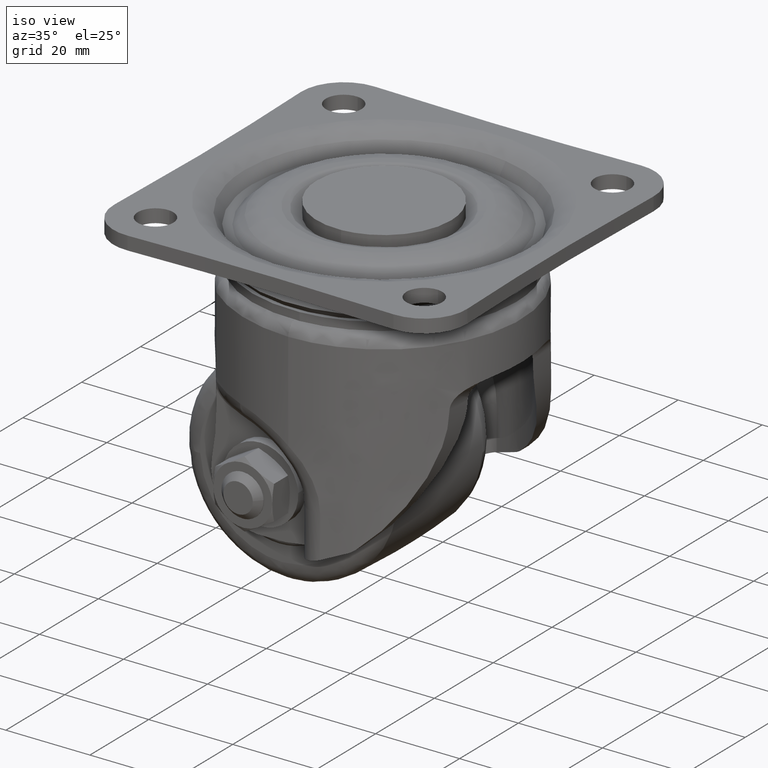
[diagram: clean part render]
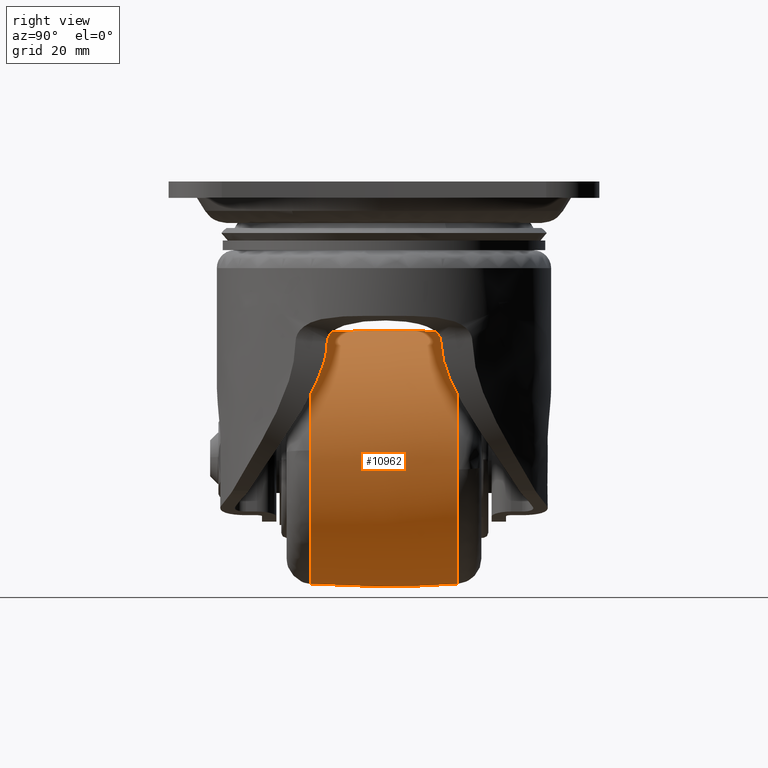
[diagram: tour spotlight — one face highlighted and labeled with its STEP entity id]
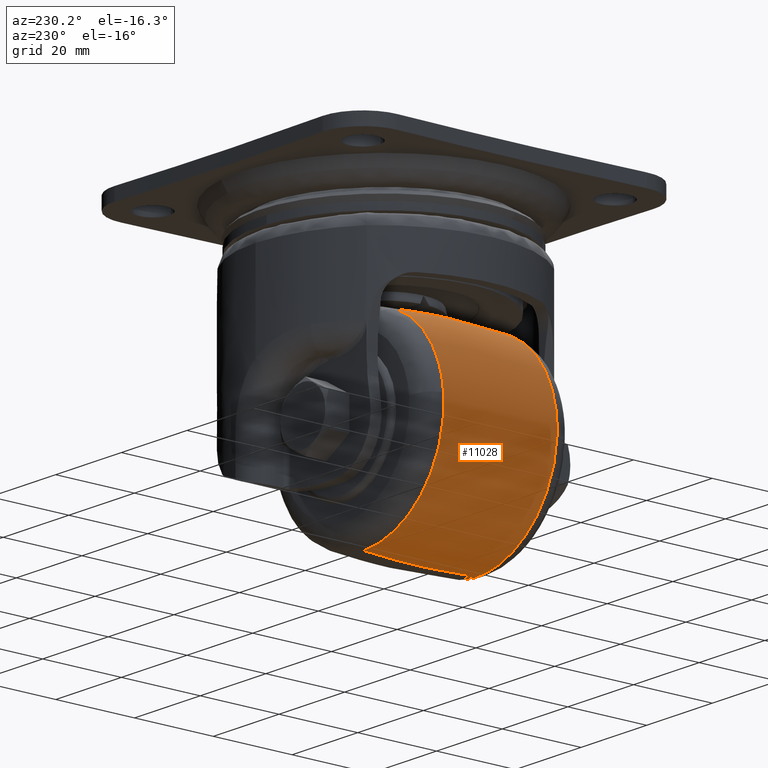
[diagram: tour spotlight — one face highlighted and labeled with its STEP entity id]
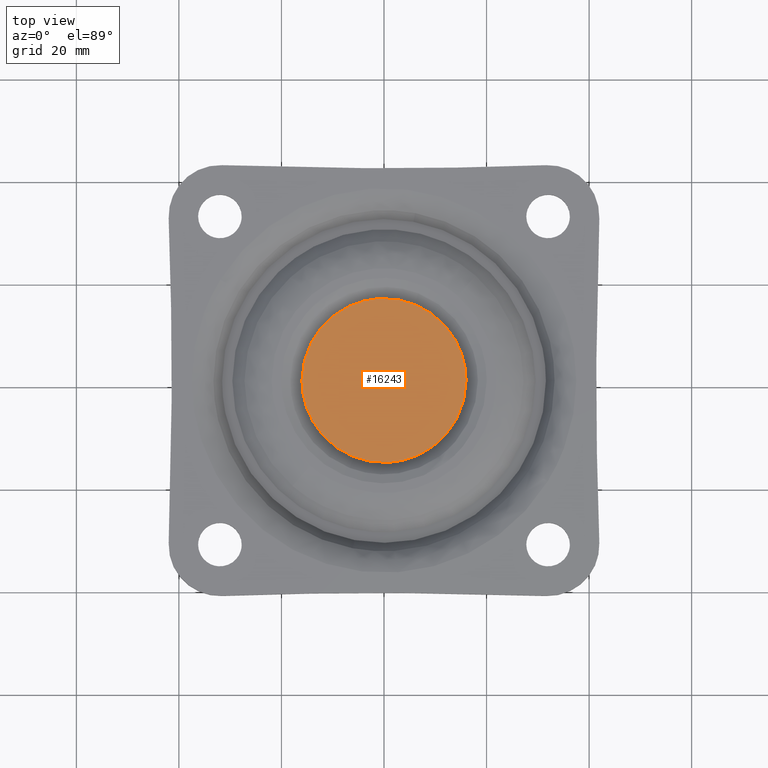
[diagram: tour spotlight — one face highlighted and labeled with its STEP entity id]
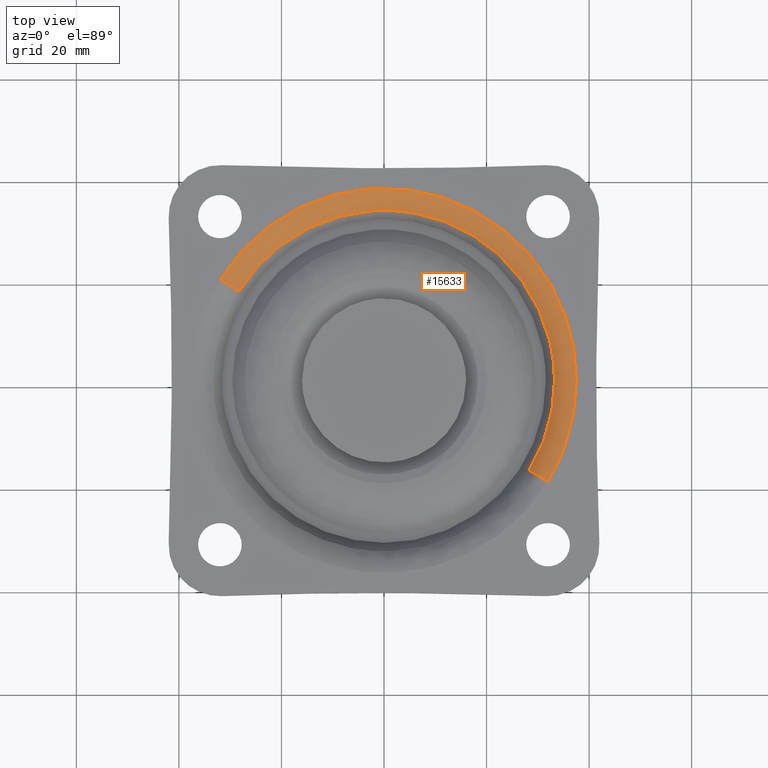
[diagram: tour spotlight — one face highlighted and labeled with its STEP entity id]
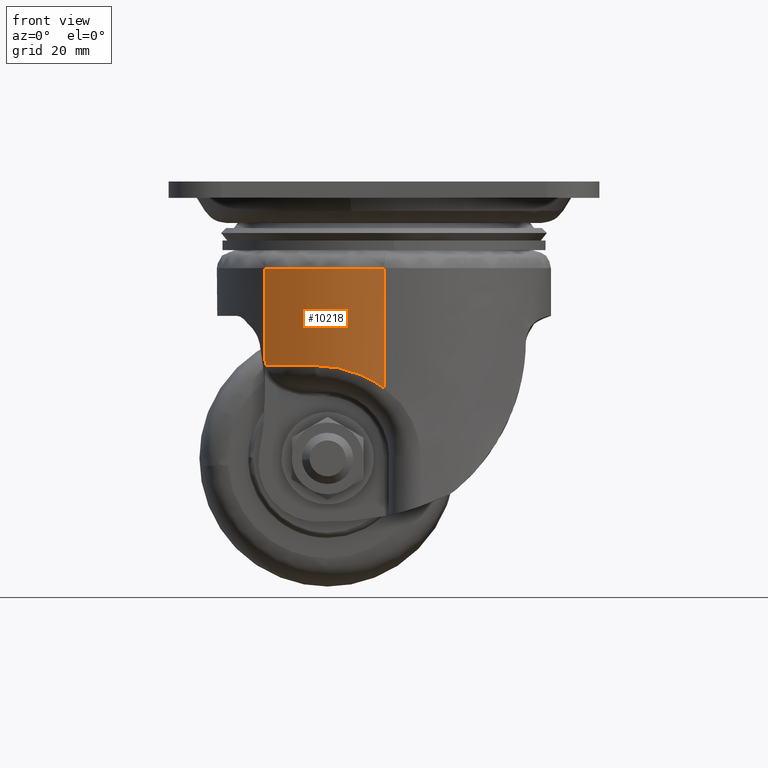
[diagram: tour spotlight — one face highlighted and labeled with its STEP entity id]
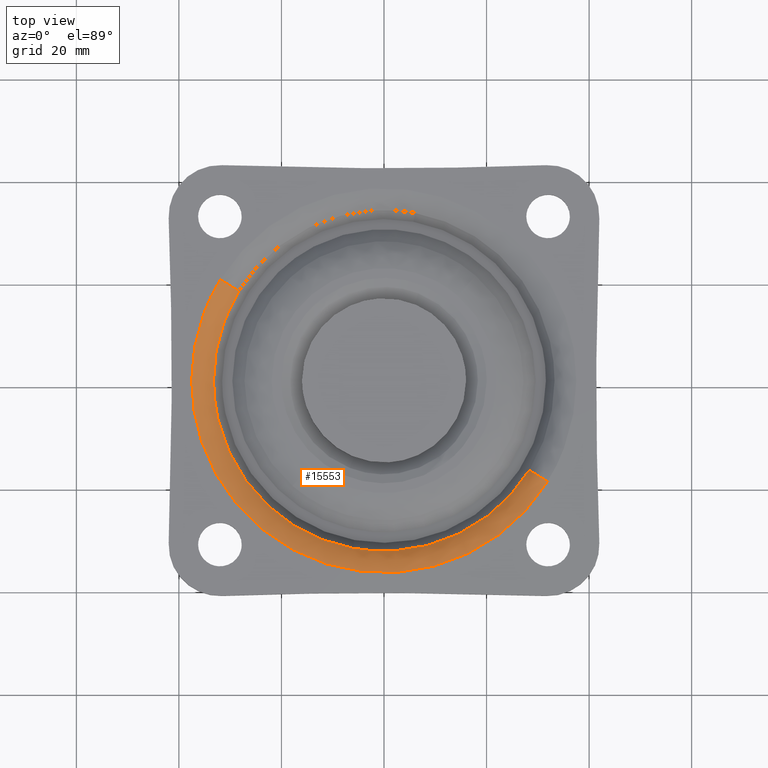
[diagram: tour spotlight — one face highlighted and labeled with its STEP entity id]
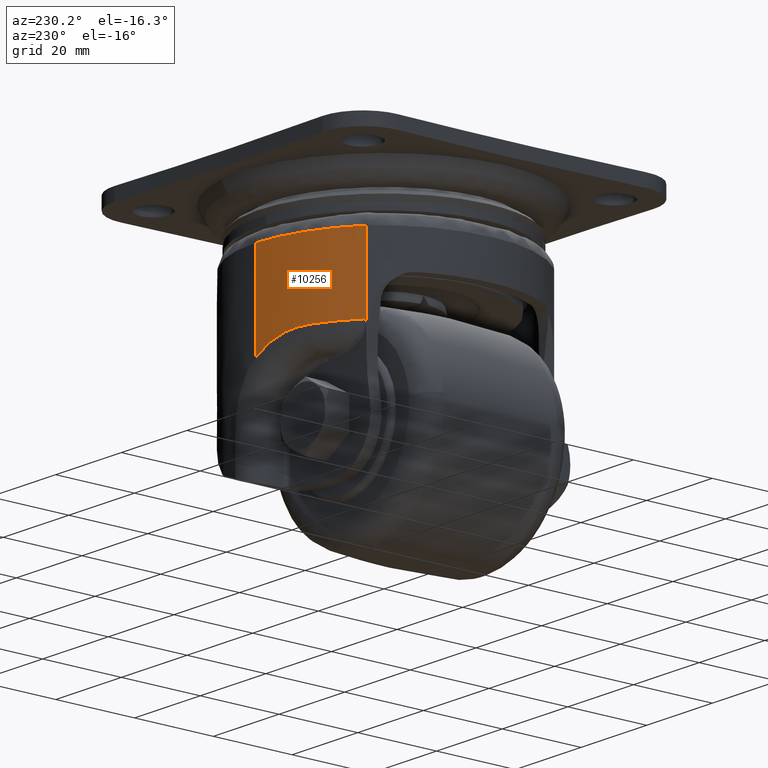
[diagram: tour spotlight — one face highlighted and labeled with its STEP entity id]
A machine part: a face-by-face anatomy tour. The part has 267 B-rep faces; the first image is the clean iso view, then the 7 largest visible faces are spotlighted one at a time (largest first), each with its STEP entity span.

Face 1 — right view, entity #10962. In plain terms, the highlighted face is a freeform B-spline surface patch.
Definition (entity closure, byte-faithful):
#10755=CARTESIAN_POINT('',(-10.999955000000099,14.358974467938410,-29.516086309539631));
#10756=VERTEX_POINT('',#10755);
#10770=CARTESIAN_POINT('',(13.389268591093650,14.358970086692951,-56.150873064970547));
#10771=VERTEX_POINT('',#10770);
#10772=CARTESIAN_POINT('',(13.389268591093657,14.358970086692953,-56.150873064970547));
#10773=CARTESIAN_POINT('',(13.483929671239546,14.358970174440188,-55.077504762395257));
#10774=CARTESIAN_POINT('',(13.483929649555380,14.358970270360620,-53.999970430027311));
#10775=CARTESIAN_POINT('',(13.483929156844626,14.358972449878047,-29.516086349328670));
#10776=CARTESIAN_POINT('',(-10.999955000000099,14.358974467938410,-29.516086309539631));
#10784=(BOUNDED_CURVE()B_SPLINE_CURVE(2,(#10772,#10773,#10774,#10775,#10776),.UNSPECIFIED.,.F.,.U.)B_SPLINE_CURVE_WITH_KNOTS((3,2,3),(0.234718706160021,0.250000000000000,0.500000000000000),.UNSPECIFIED.)CURVE()GEOMETRIC_REPRESENTATION_ITEM()RATIONAL_B_SPLINE_CURVE((0.966382367565052,0.982096850638297,1.0,0.707106781186547,1.0))REPRESENTATION_ITEM(''));
#10785=EDGE_CURVE('',#10771,#10756,#10784,.T.);
#10834=CARTESIAN_POINT('',(-10.999955000000099,14.358974516637961,-78.483854384031872));
#10835=VERTEX_POINT('',#10834);
#10836=CARTESIAN_POINT('',(-10.999955000000099,14.358974516637961,-78.483854384031872));
#10837=CARTESIAN_POINT('',(11.419706872672061,14.358972312770808,-78.483854427484374));
#10838=CARTESIAN_POINT('',(13.389268591093657,14.358970086692953,-56.150873064970547));
#10846=(BOUNDED_CURVE()B_SPLINE_CURVE(2,(#10836,#10837,#10838),.UNSPECIFIED.,.F.,.U.)B_SPLINE_CURVE_WITH_KNOTS((3,3),(0.0,0.234718706160021),.UNSPECIFIED.)CURVE()GEOMETRIC_REPRESENTATION_ITEM()RATIONAL_B_SPLINE_CURVE((1.0,0.725009930548250,0.966382367565052))REPRESENTATION_ITEM(''));
#10847=EDGE_CURVE('',#10835,#10771,#10846,.T.);
#10869=CARTESIAN_POINT('',(-11.681422334244921,-15.789163454195075,-78.375751672240042));
#10870=CARTESIAN_POINT('',(-11.716379180557585,-0.000003082789007,-79.626142425909677));
#10871=CARTESIAN_POINT('',(-11.681422347810289,15.789157327043656,-78.375752157467346));
#10872=CARTESIAN_POINT('',(-11.342673014693993,-15.789163454195073,-78.375751672240028));
#10873=CARTESIAN_POINT('',(-11.360253227810906,-0.000003082789007,-79.626142425909677));
#10874=CARTESIAN_POINT('',(-11.342673021516173,15.789157327043656,-78.375752157467332));
#10875=CARTESIAN_POINT('',(13.375826672239921,-15.789163454195066,-78.375751672240028));
#10876=CARTESIAN_POINT('',(14.626217425909584,-0.000003082789001,-79.626142425909705));
#10877=CARTESIAN_POINT('',(13.375827157467237,15.789157327043668,-78.375752157467346));
#10878=CARTESIAN_POINT('',(13.375826672239921,-15.789163454195073,-53.999970000000005));
#10879=CARTESIAN_POINT('',(14.626217425909569,-0.000003082789007,-53.999969999999998));
#10880=CARTESIAN_POINT('',(13.375827157467230,15.789157327043647,-53.999969999999983));
#10881=CARTESIAN_POINT('',(13.375826672239929,-15.789163454195066,-29.624188327759985));
#10882=CARTESIAN_POINT('',(14.626217425909589,-0.000003082789001,-28.373797574090325));
#10883=CARTESIAN_POINT('',(13.375827157467242,15.789157327043668,-29.624187842532660));
#10884=CARTESIAN_POINT('',(-11.342673014693993,-15.789163454195073,-29.624188327759988));
#10885=CARTESIAN_POINT('',(-11.360253227810906,-0.000003082789007,-28.373797574090329));
#10886=CARTESIAN_POINT('',(-11.342673021516184,15.789157327043654,-29.624187842532656));
#10887=CARTESIAN_POINT('',(-11.681422334244928,-15.789163454195073,-29.624188327759992));
#10888=CARTESIAN_POINT('',(-11.716379180557592,-0.000003082789007,-28.373797574090325));
#10889=CARTESIAN_POINT('',(-11.681422347810297,15.789157327043654,-29.624187842532656));
#10897=(BOUNDED_SURFACE()B_SPLINE_SURFACE(2,2,((#10869,#10872,#10875,#10878,#10881,#10884,#10887),(#10870,#10873,#10876,#10879,#10882,#10885,#10888),(#10871,#10874,#10877,#10880,#10883,#10886,#10889)),.UNSPECIFIED.,.F.,.F.,.U.)B_SPLINE_SURFACE_WITH_KNOTS((3,3),(3,1,2,1,3),(0.0,31.627677201489579),(0.0,0.828427124746193,42.249783362055688,83.671139599365191,84.499566724111389),.UNSPECIFIED.)GEOMETRIC_REPRESENTATION_ITEM()RATIONAL_B_SPLINE_SURFACE(((0.949965961114694,0.944465629742814,0.663948729776938,0.938965298370934,0.663948729776938,0.944465629742814,0.949965961114694),(0.947001030873402,0.941517866536436,0.661876485351176,0.936034702199470,0.661876485351176,0.941517866536436,0.947001030873402),(0.949965959960520,0.944465628595323,0.663948728970264,0.938965297230125,0.663948728970264,0.944465628595323,0.949965959960520)))REPRESENTATION_ITEM('')SURFACE());
#10898=CARTESIAN_POINT('',(-10.999955000000099,-14.358975065796139,-78.483854344503129));
#10899=VERTEX_POINT('',#10898);
#10900=CARTESIAN_POINT('',(-10.999955000000099,-14.358975065796136,-78.483854344503129));
#10901=CARTESIAN_POINT('',(-10.999955000000103,-0.000000276001740,-79.517422348945146));
#10902=CARTESIAN_POINT('',(-10.999955000000101,14.358974516637963,-78.483854384031872));
#10910=(BOUNDED_CURVE()B_SPLINE_CURVE(2,(#10900,#10901,#10902),.UNSPECIFIED.,.F.,.U.)B_SPLINE_CURVE_WITH_KNOTS((3,3),(0.430395100552181,0.569604896778896),.UNSPECIFIED.)CURVE()GEOMETRIC_REPRESENTATION_ITEM()RATIONAL_B_SPLINE_CURVE((0.938711210506785,0.936288789539657,0.938711210413900))REPRESENTATION_ITEM(''));
#10911=EDGE_CURVE('',#10899,#10835,#10910,.T.);
#10912=ORIENTED_EDGE('',*,*,#10911,.T.);
#10913=ORIENTED_EDGE('',*,*,#10847,.T.);
#10914=ORIENTED_EDGE('',*,*,#10785,.T.);
#10915=CARTESIAN_POINT('',(-10.999955000000099,-14.358974711101091,-29.516085281427198));
#10916=VERTEX_POINT('',#10915);
#10917=CARTESIAN_POINT('',(-10.999955000000103,-14.358974711101089,-29.516085281427198));
#10918=CARTESIAN_POINT('',(-10.999955000000096,-0.000000122017305,-28.482517838116387));
#10919=CARTESIAN_POINT('',(-10.999955000000107,14.358974467938406,-29.516086309539631));
#10927=(BOUNDED_CURVE()B_SPLINE_CURVE(2,(#10917,#10918,#10919),.UNSPECIFIED.,.F.,.U.)B_SPLINE_CURVE_WITH_KNOTS((3,3),(0.430395102397308,0.569604896784815),.UNSPECIFIED.)CURVE()GEOMETRIC_REPRESENTATION_ITEM()RATIONAL_B_SPLINE_CURVE((0.938711210442570,0.936288789571662,0.938711210414106))REPRESENTATION_ITEM(''));
#10928=EDGE_CURVE('',#10916,#10756,#10927,.T.);
#10929=ORIENTED_EDGE('',*,*,#10928,.F.);
#10930=CARTESIAN_POINT('',(13.435616724365071,-14.358974875915081,-52.462614135737290));
#10931=VERTEX_POINT('',#10930);
#10932=CARTESIAN_POINT('',(13.435616724365074,-14.358974875915079,-52.462614135737290));
#10933=CARTESIAN_POINT('',(11.991943618045648,-14.358974710402196,-29.516085282162251));
#10934=CARTESIAN_POINT('',(-10.999955000000099,-14.358974711101091,-29.516085281427198));
#10942=(BOUNDED_CURVE()B_SPLINE_CURVE(2,(#10932,#10933,#10934),.UNSPECIFIED.,.F.,.U.)B_SPLINE_CURVE_WITH_KNOTS((3,3),(0.260968088193144,0.500000000000000),.UNSPECIFIED.)CURVE()GEOMETRIC_REPRESENTATION_ITEM()RATIONAL_B_SPLINE_CURVE((0.975427682733696,0.719956695807026,1.0))REPRESENTATION_ITEM(''));
#10943=EDGE_CURVE('',#10931,#10916,#10942,.T.);
#10944=ORIENTED_EDGE('',*,*,#10943,.F.);
#10945=CARTESIAN_POINT('',(-10.999955000000099,-14.358975065796139,-78.483854344503129));
#10946=CARTESIAN_POINT('',(13.483930081670499,-14.358975065139830,-78.483854345193365));
#10947=CARTESIAN_POINT('',(13.483930069987309,-14.358974887093410,-53.999969814390447));
#10948=CARTESIAN_POINT('',(13.483930069620149,-14.358974881498074,-53.230532821141466));
#10949=CARTESIAN_POINT('',(13.435616724365074,-14.358974875915079,-52.462614135737290));
#10957=(BOUNDED_CURVE()B_SPLINE_CURVE(2,(#10945,#10946,#10947,#10948,#10949),.UNSPECIFIED.,.F.,.U.)B_SPLINE_CURVE_WITH_KNOTS((3,2,3),(0.0,0.250000000000000,0.260968088193144),.UNSPECIFIED.)CURVE()GEOMETRIC_REPRESENTATION_ITEM()RATIONAL_B_SPLINE_CURVE((1.0,0.707106781186547,1.0,0.987150085379521,0.975427682733696))REPRESENTATION_ITEM(''));
#10958=EDGE_CURVE('',#10899,#10931,#10957,.T.);
#10959=ORIENTED_EDGE('',*,*,#10958,.F.);
#10960=EDGE_LOOP('',(#10912,#10913,#10914,#10929,#10944,#10959));
#10961=FACE_OUTER_BOUND('',#10960,.T.);
#10962=ADVANCED_FACE('',(#10961),#10897,.T.);

Face 2 — auxiliary view, entity #11028. In plain terms, the highlighted face is a freeform B-spline surface patch.
Definition (entity closure, byte-faithful):
#10740=CARTESIAN_POINT('',(-35.389178560744412,14.358970084346440,-51.849066937505292));
#10741=VERTEX_POINT('',#10740);
#10755=CARTESIAN_POINT('',(-10.999955000000099,14.358974467938410,-29.516086309539631));
#10756=VERTEX_POINT('',#10755);
#10757=CARTESIAN_POINT('',(-10.999955000000099,14.358974467938410,-29.516086309539631));
#10758=CARTESIAN_POINT('',(-33.419616252572943,14.358972265037126,-29.516086264748257));
#10759=CARTESIAN_POINT('',(-35.389178560744412,14.358970084346444,-51.849066937505285));
#10767=(BOUNDED_CURVE()B_SPLINE_CURVE(2,(#10757,#10758,#10759),.UNSPECIFIED.,.F.,.U.)B_SPLINE_CURVE_WITH_KNOTS((3,3),(0.500000000000000,0.734718701338010),.UNSPECIFIED.)CURVE()GEOMETRIC_REPRESENTATION_ITEM()RATIONAL_B_SPLINE_CURVE((1.0,0.725009936197588,0.966382357647644))REPRESENTATION_ITEM(''));
#10768=EDGE_CURVE('',#10756,#10741,#10767,.T.);
#10834=CARTESIAN_POINT('',(-10.999955000000099,14.358974516637961,-78.483854384031872));
#10835=VERTEX_POINT('',#10834);
#10849=CARTESIAN_POINT('',(-35.389178560744412,14.358970084346444,-51.849066937505285));
#10850=CARTESIAN_POINT('',(-35.483839700990572,14.358970174189755,-52.922435582338252));
#10851=CARTESIAN_POINT('',(-35.483839678638269,14.358970272210980,-53.999970260979353));
#10852=CARTESIAN_POINT('',(-35.483839170746208,14.358972499462100,-78.483854343016844));
#10853=CARTESIAN_POINT('',(-10.999955000000099,14.358974516637961,-78.483854384031872));
#10861=(BOUNDED_CURVE()B_SPLINE_CURVE(2,(#10849,#10850,#10851,#10852,#10853),.UNSPECIFIED.,.F.,.U.)B_SPLINE_CURVE_WITH_KNOTS((3,2,3),(0.734718701338010,0.750000000000000,1.0),.UNSPECIFIED.)CURVE()GEOMETRIC_REPRESENTATION_ITEM()RATIONAL_B_SPLINE_CURVE((0.966382357647644,0.982096844988960,1.0,0.707106781186547,1.0))REPRESENTATION_ITEM(''));
#10862=EDGE_CURVE('',#10741,#10835,#10861,.T.);
#10898=CARTESIAN_POINT('',(-10.999955000000099,-14.358975065796139,-78.483854344503129));
#10899=VERTEX_POINT('',#10898);
#10900=CARTESIAN_POINT('',(-10.999955000000099,-14.358975065796136,-78.483854344503129));
#10901=CARTESIAN_POINT('',(-10.999955000000103,-0.000000276001740,-79.517422348945146));
#10902=CARTESIAN_POINT('',(-10.999955000000101,14.358974516637963,-78.483854384031872));
#10910=(BOUNDED_CURVE()B_SPLINE_CURVE(2,(#10900,#10901,#10902),.UNSPECIFIED.,.F.,.U.)B_SPLINE_CURVE_WITH_KNOTS((3,3),(0.430395100552181,0.569604896778896),.UNSPECIFIED.)CURVE()GEOMETRIC_REPRESENTATION_ITEM()RATIONAL_B_SPLINE_CURVE((0.938711210506785,0.936288789539657,0.938711210413900))REPRESENTATION_ITEM(''));
#10911=EDGE_CURVE('',#10899,#10835,#10910,.T.);
#10915=CARTESIAN_POINT('',(-10.999955000000099,-14.358974711101091,-29.516085281427198));
#10916=VERTEX_POINT('',#10915);
#10917=CARTESIAN_POINT('',(-10.999955000000103,-14.358974711101089,-29.516085281427198));
#10918=CARTESIAN_POINT('',(-10.999955000000096,-0.000000122017305,-28.482517838116387));
#10919=CARTESIAN_POINT('',(-10.999955000000107,14.358974467938406,-29.516086309539631));
#10927=(BOUNDED_CURVE()B_SPLINE_CURVE(2,(#10917,#10918,#10919),.UNSPECIFIED.,.F.,.U.)B_SPLINE_CURVE_WITH_KNOTS((3,3),(0.430395102397308,0.569604896784815),.UNSPECIFIED.)CURVE()GEOMETRIC_REPRESENTATION_ITEM()RATIONAL_B_SPLINE_CURVE((0.938711210442570,0.936288789571662,0.938711210414106))REPRESENTATION_ITEM(''));
#10928=EDGE_CURVE('',#10916,#10756,#10927,.T.);
#10963=CARTESIAN_POINT('',(-10.318487665755276,-15.789163454195075,-29.624188327759995));
#10964=CARTESIAN_POINT('',(-10.283530819442605,-0.000003082789007,-28.373797574090325));
#10965=CARTESIAN_POINT('',(-10.318487652189901,15.789157327043654,-29.624187842532656));
#10966=CARTESIAN_POINT('',(-10.657236985306207,-15.789163454195073,-29.624188327759988));
#10967=CARTESIAN_POINT('',(-10.639656772189293,-0.000003082789007,-28.373797574090315));
#10968=CARTESIAN_POINT('',(-10.657236978484013,15.789157327043656,-29.624187842532660));
#10969=CARTESIAN_POINT('',(-35.375736672240116,-15.789163454195066,-29.624188327759974));
#10970=CARTESIAN_POINT('',(-36.626127425909779,-0.000003082789001,-28.373797574090325));
#10971=CARTESIAN_POINT('',(-35.375737157467441,15.789157327043668,-29.624187842532660));
#10972=CARTESIAN_POINT('',(-35.375736672240116,-15.789163454195073,-53.999970000000005));
#10973=CARTESIAN_POINT('',(-36.626127425909765,-0.000003082789007,-53.999969999999998));
#10974=CARTESIAN_POINT('',(-35.375737157467434,15.789157327043647,-53.999969999999983));
#10975=CARTESIAN_POINT('',(-35.375736672240116,-15.789163454195066,-78.375751672240000));
#10976=CARTESIAN_POINT('',(-36.626127425909779,-0.000003082789001,-79.626142425909677));
#10977=CARTESIAN_POINT('',(-35.375737157467441,15.789157327043668,-78.375752157467318));
#10978=CARTESIAN_POINT('',(-10.657236985306207,-15.789163454195073,-78.375751672240028));
#10979=CARTESIAN_POINT('',(-10.639656772189293,-0.000003082789007,-79.626142425909677));
#10980=CARTESIAN_POINT('',(-10.657236978484011,15.789157327043654,-78.375752157467332));
#10981=CARTESIAN_POINT('',(-10.318487665755274,-15.789163454195073,-78.375751672240028));
#10982=CARTESIAN_POINT('',(-10.283530819442603,-0.000003082789007,-79.626142425909691));
#10983=CARTESIAN_POINT('',(-10.318487652189898,15.789157327043654,-78.375752157467332));
#10991=(BOUNDED_SURFACE()B_SPLINE_SURFACE(2,2,((#10963,#10966,#10969,#10972,#10975,#10978,#10981),(#10964,#10967,#10970,#10973,#10976,#10979,#10982),(#10965,#10968,#10971,#10974,#10977,#10980,#10983)),.UNSPECIFIED.,.F.,.F.,.U.)B_SPLINE_SURFACE_WITH_KNOTS((3,3),(3,1,2,1,3),(0.0,31.627677201489579),(0.0,0.828427124746195,42.249783362055688,83.671139599365191,84.499566724111389),.UNSPECIFIED.)GEOMETRIC_REPRESENTATION_ITEM()RATIONAL_B_SPLINE_SURFACE(((0.949965961114694,0.944465629742814,0.663948729776938,0.938965298370934,0.663948729776938,0.944465629742814,0.949965961114694),(0.947001030873402,0.941517866536436,0.661876485351176,0.936034702199470,0.661876485351176,0.941517866536436,0.947001030873402),(0.949965959960520,0.944465628595323,0.663948728970264,0.938965297230125,0.663948728970264,0.944465628595323,0.949965959960520)))REPRESENTATION_ITEM('')SURFACE());
#10992=ORIENTED_EDGE('',*,*,#10911,.F.);
#10993=CARTESIAN_POINT('',(-35.435526711788157,-14.358974898970150,-55.537325863471423));
#10994=VERTEX_POINT('',#10993);
#10995=CARTESIAN_POINT('',(-35.435526711788164,-14.358974898970152,-55.537325863471423));
#10996=CARTESIAN_POINT('',(-33.991853272203315,-14.358975065489034,-78.483854344109844));
#10997=CARTESIAN_POINT('',(-10.999955000000099,-14.358975065796139,-78.483854344503129));
#11005=(BOUNDED_CURVE()B_SPLINE_CURVE(2,(#10995,#10996,#10997),.UNSPECIFIED.,.F.,.U.)B_SPLINE_CURVE_WITH_KNOTS((3,3),(0.760968090822409,1.0),.UNSPECIFIED.)CURVE()GEOMETRIC_REPRESENTATION_ITEM()RATIONAL_B_SPLINE_CURVE((0.975427677113518,0.719956698887403,1.0))REPRESENTATION_ITEM(''));
#11006=EDGE_CURVE('',#10994,#10899,#11005,.T.);
#11007=ORIENTED_EDGE('',*,*,#11006,.F.);
#11008=CARTESIAN_POINT('',(-10.999955000000099,-14.358974711101091,-29.516085281427198));
#11009=CARTESIAN_POINT('',(-35.483840086771956,-14.358974710812694,-29.516085281057894));
#11010=CARTESIAN_POINT('',(-35.483840080521063,-14.358974887853121,-53.999969812202593));
#11011=CARTESIAN_POINT('',(-35.483840080324619,-14.358974893416841,-54.769406992312447));
#11012=CARTESIAN_POINT('',(-35.435526711788164,-14.358974898970152,-55.537325863471423));
#11020=(BOUNDED_CURVE()B_SPLINE_CURVE(2,(#11008,#11009,#11010,#11011,#11012),.UNSPECIFIED.,.F.,.U.)B_SPLINE_CURVE_WITH_KNOTS((3,2,3),(0.500000000000000,0.750000000000000,0.760968090822409),.UNSPECIFIED.)CURVE()GEOMETRIC_REPRESENTATION_ITEM()RATIONAL_B_SPLINE_CURVE((1.0,0.707106781186547,1.0,0.987150082299145,0.975427677113518))REPRESENTATION_ITEM(''));
#11021=EDGE_CURVE('',#10916,#10994,#11020,.T.);
#11022=ORIENTED_EDGE('',*,*,#11021,.F.);
#11023=ORIENTED_EDGE('',*,*,#10928,.T.);
#11024=ORIENTED_EDGE('',*,*,#10768,.T.);
#11025=ORIENTED_EDGE('',*,*,#10862,.T.);
#11026=EDGE_LOOP('',(#10992,#11007,#11022,#11023,#11024,#11025));
#11027=FACE_OUTER_BOUND('',#11026,.T.);
#11028=ADVANCED_FACE('',(#11027),#10991,.T.);

Face 3 — top view, entity #16243. In plain terms, the highlighted face is a freeform B-spline surface patch.
Definition (entity closure, byte-faithful):
#16172=CARTESIAN_POINT('',(-17.598399937977788,-17.598006196946979,-4.898425E-016));
#16173=CARTESIAN_POINT('',(17.598400796284679,-17.598006196946979,-4.898425E-016));
#16174=CARTESIAN_POINT('',(-17.598399937977788,17.598005624742399,-4.898425E-016));
#16175=CARTESIAN_POINT('',(17.598400796284679,17.598005624742399,-4.898425E-016));
#16176=B_SPLINE_SURFACE_WITH_KNOTS('',1,1,((#16172,#16174),(#16173,#16175)),.UNSPECIFIED.,.F.,.F.,.U.,(2,2),(2,2),(0.0,35.196800734262467),(0.0,35.196011821689382),.UNSPECIFIED.);
#16177=CARTESIAN_POINT('',(0.976755932767944,-15.970158040776310,-9.339318E-016));
#16178=VERTEX_POINT('',#16177);
#16179=CARTESIAN_POINT('',(-16.0,5.143345E-015,-9.796851E-016));
#16180=VERTEX_POINT('',#16179);
#16181=CARTESIAN_POINT('',(0.976755932767944,-15.970158040776312,-9.339318E-016));
#16182=CARTESIAN_POINT('',(0.488833833862659,-15.999999999986771,-9.345892E-016));
#16183=CARTESIAN_POINT('',(-7.980705E-013,-15.999999999986970,-9.352882E-016));
#16184=CARTESIAN_POINT('',(-16.000000000000394,-15.999999999993692,-9.581648E-016));
#16185=CARTESIAN_POINT('',(-16.0,5.143345E-015,-9.796851E-016));
#16193=(BOUNDED_CURVE()B_SPLINE_CURVE(2,(#16181,#16182,#16183,#16184,#16185),.UNSPECIFIED.,.F.,.U.)B_SPLINE_CURVE_WITH_KNOTS((3,2,3),(0.739333185889295,0.750000000000000,1.0),.UNSPECIFIED.)CURVE()GEOMETRIC_REPRESENTATION_ITEM()RATIONAL_B_SPLINE_CURVE((0.976072520992464,0.987503049922523,1.0,0.707106781186548,1.0))REPRESENTATION_ITEM(''));
#16194=EDGE_CURVE('',#16178,#16180,#16193,.T.);
#16195=ORIENTED_EDGE('',*,*,#16194,.F.);
#16196=CARTESIAN_POINT('',(16.0,5.143345E-015,0.0));
#16197=VERTEX_POINT('',#16196);
#16198=CARTESIAN_POINT('',(16.0,5.143345E-015,0.0));
#16199=CARTESIAN_POINT('',(15.999999999999588,-15.051316615756301,-4.669659E-016));
#16200=CARTESIAN_POINT('',(0.976755932767944,-15.970158040776312,-9.339318E-016));
#16208=(BOUNDED_CURVE()B_SPLINE_CURVE(2,(#16198,#16199,#16200),.UNSPECIFIED.,.F.,.U.)B_SPLINE_CURVE_WITH_KNOTS((3,3),(0.500000000000000,0.739333185889295),.UNSPECIFIED.)CURVE()GEOMETRIC_REPRESENTATION_ITEM()RATIONAL_B_SPLINE_CURVE((1.0,0.719603731264024,0.976072520992464))REPRESENTATION_ITEM(''));
#16209=EDGE_CURVE('',#16197,#16178,#16208,.T.);
#16210=ORIENTED_EDGE('',*,*,#16209,.F.);
#16211=CARTESIAN_POINT('',(-0.976755932767944,15.970158040776321,-9.339318E-016));
#16212=VERTEX_POINT('',#16211);
#16213=CARTESIAN_POINT('',(-0.976755932767944,15.970158040776319,-9.339318E-016));
#16214=CARTESIAN_POINT('',(-0.488833833862660,15.999999999986779,-9.205109E-016));
#16215=CARTESIAN_POINT('',(7.954849E-013,15.999999999986990,-9.062441E-016));
#16216=CARTESIAN_POINT('',(16.000000000000380,15.999999999993692,-4.392782E-016));
#16217=CARTESIAN_POINT('',(16.0,5.143345E-015,0.0));
#16225=(BOUNDED_CURVE()B_SPLINE_CURVE(2,(#16213,#16214,#16215,#16216,#16217),.UNSPECIFIED.,.F.,.U.)B_SPLINE_CURVE_WITH_KNOTS((3,2,3),(0.239333185889295,0.250000000000000,0.500000000000000),.UNSPECIFIED.)CURVE()GEOMETRIC_REPRESENTATION_ITEM()RATIONAL_B_SPLINE_CURVE((0.976072520992465,0.987503049922523,1.0,0.707106781186548,1.0))REPRESENTATION_ITEM(''));
#16226=EDGE_CURVE('',#16212,#16197,#16225,.T.);
#16227=ORIENTED_EDGE('',*,*,#16226,.F.);
#16228=CARTESIAN_POINT('',(-16.0,5.143345E-015,-9.796851E-016));
#16229=CARTESIAN_POINT('',(-15.999999999999590,15.051316615756303,-9.568084E-016));
#16230=CARTESIAN_POINT('',(-0.976755932767944,15.970158040776319,-9.339318E-016));
#16238=(BOUNDED_CURVE()B_SPLINE_CURVE(2,(#16228,#16229,#16230),.UNSPECIFIED.,.F.,.U.)B_SPLINE_CURVE_WITH_KNOTS((3,3),(0.0,0.239333185889295),.UNSPECIFIED.)CURVE()GEOMETRIC_REPRESENTATION_ITEM()RATIONAL_B_SPLINE_CURVE((1.0,0.719603731264024,0.976072520992465))REPRESENTATION_ITEM(''));
#16239=EDGE_CURVE('',#16180,#16212,#16238,.T.);
#16240=ORIENTED_EDGE('',*,*,#16239,.F.);
#16241=EDGE_LOOP('',(#16195,#16210,#16227,#16240));
#16242=FACE_OUTER_BOUND('',#16241,.T.);
#16243=ADVANCED_FACE('',(#16242),#16176,.T.);

Face 4 — top view, entity #15633. In plain terms, the highlighted face is a freeform B-spline surface patch.
Definition (entity closure, byte-faithful):
#15188=CARTESIAN_POINT('',(28.297381760130950,-17.463176686436171,-2.366010121266770));
#15189=VERTEX_POINT('',#15188);
#15207=CARTESIAN_POINT('',(33.252133081089802,0.0,-2.366010121698010));
#15208=VERTEX_POINT('',#15207);
#15209=CARTESIAN_POINT('',(33.252133081089802,0.0,-2.366010121698010));
#15210=CARTESIAN_POINT('',(33.252133081203517,-9.434483386193353,-2.366010121482391));
#15211=CARTESIAN_POINT('',(28.297381760130953,-17.463176686436181,-2.366010121266770));
#15219=(BOUNDED_CURVE()B_SPLINE_CURVE(2,(#15209,#15210,#15211),.UNSPECIFIED.,.F.,.U.)B_SPLINE_CURVE_WITH_KNOTS((3,3),(0.500000000000000,0.589762955611868),.UNSPECIFIED.)CURVE()GEOMETRIC_REPRESENTATION_ITEM()RATIONAL_B_SPLINE_CURVE((1.0,0.894836156002523,0.865190851690798))REPRESENTATION_ITEM(''));
#15220=EDGE_CURVE('',#15208,#15189,#15219,.T.);
#15222=CARTESIAN_POINT('',(6.059719945797411,32.695323039035401,-2.366010121480128));
#15223=VERTEX_POINT('',#15222);
#15224=CARTESIAN_POINT('',(6.059719945797411,32.695323039035401,-2.366010121480128));
#15225=CARTESIAN_POINT('',(33.252133081066177,27.655507158973041,-2.366010121656428));
#15226=CARTESIAN_POINT('',(33.252133081089802,0.0,-2.366010121698010));
#15234=(BOUNDED_CURVE()B_SPLINE_CURVE(2,(#15224,#15225,#15226),.UNSPECIFIED.,.F.,.U.)B_SPLINE_CURVE_WITH_KNOTS((3,3),(0.281295845408408,0.500000000000000),.UNSPECIFIED.)CURVE()GEOMETRIC_REPRESENTATION_ITEM()RATIONAL_B_SPLINE_CURVE((0.935849061228448,0.743772144775174,1.0))REPRESENTATION_ITEM(''));
#15235=EDGE_CURVE('',#15223,#15208,#15234,.T.);
#15289=CARTESIAN_POINT('',(-28.297381760130950,17.463176686436171,-2.366010121266770));
#15290=VERTEX_POINT('',#15289);
#15291=CARTESIAN_POINT('',(-28.297381760130953,17.463176686436167,-2.366010121266770));
#15292=CARTESIAN_POINT('',(-18.553535578369186,33.252133081233183,-2.366010121308480));
#15293=CARTESIAN_POINT('',(-1.404603E-010,33.252133081209671,-2.366010121437181));
#15294=CARTESIAN_POINT('',(3.055441800522013,33.252133081205805,-2.366010121458376));
#15295=CARTESIAN_POINT('',(6.059719945797411,32.695323039035401,-2.366010121480128));
#15303=(BOUNDED_CURVE()B_SPLINE_CURVE(2,(#15291,#15292,#15293,#15294,#15295),.UNSPECIFIED.,.F.,.U.)B_SPLINE_CURVE_WITH_KNOTS((3,2,3),(0.089762955611868,0.250000000000000,0.281295845408408),.UNSPECIFIED.)CURVE()GEOMETRIC_REPRESENTATION_ITEM()RATIONAL_B_SPLINE_CURVE((0.865190851690798,0.812270625184024,1.0,0.963334636411373,0.935849061228448))REPRESENTATION_ITEM(''));
#15304=EDGE_CURVE('',#15290,#15223,#15303,.T.);
#15478=CARTESIAN_POINT('',(-31.914067990563421,19.695143982894379,-7.925526E-016));
#15479=VERTEX_POINT('',#15478);
#15480=CARTESIAN_POINT('',(-28.297381760130957,17.463176686436167,-2.366010121266770));
#15481=CARTESIAN_POINT('',(-29.545263284313020,18.233282405988060,-1.105056E-009));
#15482=CARTESIAN_POINT('',(-31.914067990563417,19.695143982894372,-7.925526E-016));
#15490=(BOUNDED_CURVE()B_SPLINE_CURVE(2,(#15480,#15481,#15482),.UNSPECIFIED.,.F.,.U.)B_SPLINE_CURVE_WITH_KNOTS((3,3),(-1.635289492846402,-0.378479152517415),.UNSPECIFIED.)CURVE()GEOMETRIC_REPRESENTATION_ITEM()RATIONAL_B_SPLINE_CURVE((0.913055269215391,0.796658275613506,0.910532594207595))REPRESENTATION_ITEM(''));
#15491=EDGE_CURVE('',#15290,#15479,#15490,.T.);
#15508=CARTESIAN_POINT('',(31.914067990563421,-19.695143982894390,-7.315870E-016));
#15509=VERTEX_POINT('',#15508);
#15538=CARTESIAN_POINT('',(28.297381760130946,-17.463176686436178,-2.366010121266770));
#15539=CARTESIAN_POINT('',(29.545263284313016,-18.233282405988056,-1.105057E-009));
#15540=CARTESIAN_POINT('',(31.914067990563417,-19.695143982894386,-7.315870E-016));
#15548=(BOUNDED_CURVE()B_SPLINE_CURVE(2,(#15538,#15539,#15540),.UNSPECIFIED.,.F.,.U.)B_SPLINE_CURVE_WITH_KNOTS((3,3),(-1.635289492846401,-0.378479152517415),.UNSPECIFIED.)CURVE()GEOMETRIC_REPRESENTATION_ITEM()RATIONAL_B_SPLINE_CURVE((0.913055269215391,0.796658275613506,0.910532594207595))REPRESENTATION_ITEM(''));
#15549=EDGE_CURVE('',#15189,#15509,#15548,.T.);
#15554=CARTESIAN_POINT('',(-28.679985836345988,16.610907248448374,-2.573879158369559));
#15555=CARTESIAN_POINT('',(-28.438191097574855,17.002712139016676,-2.573879158369559));
#15556=CARTESIAN_POINT('',(-10.794456247823781,45.592670866637242,-2.573879158369559));
#15557=CARTESIAN_POINT('',(17.399107309406727,28.193563557230508,-2.573879158369559));
#15558=CARTESIAN_POINT('',(45.592670866637242,10.794456247823785,-2.573879158369559));
#15559=CARTESIAN_POINT('',(27.948936016861989,-17.795502479835967,-2.573879158369558));
#15560=CARTESIAN_POINT('',(27.707141278067212,-18.187307370442557,-2.573879158369559));
#15561=CARTESIAN_POINT('',(-29.985819218066133,17.367221331358145,0.144404138469835));
#15562=CARTESIAN_POINT('',(-29.733015281340251,17.776865557975789,0.144404138469835));
#15563=CARTESIAN_POINT('',(-11.285940497026667,47.668558627501611,0.144404138469836));
#15564=CARTESIAN_POINT('',(18.191309065237466,29.477249562264142,0.144404138469835));
#15565=CARTESIAN_POINT('',(47.668558627501611,11.285940497026669,0.144404138469836));
#15566=CARTESIAN_POINT('',(29.221483843162751,-18.605752572540133,0.144404138469835));
#15567=CARTESIAN_POINT('',(28.968679906412149,-19.015396799197816,0.144404138469835));
#15568=CARTESIAN_POINT('',(-32.673870440393678,18.924089936103936,-0.005842870038769));
#15569=CARTESIAN_POINT('',(-32.398404126956208,19.370456343165319,-0.005842870038769));
#15570=CARTESIAN_POINT('',(-12.297658266934068,51.941762782886073,-0.005842870038769));
#15571=CARTESIAN_POINT('',(19.822052257976004,32.119710524910076,-0.005842870038769));
#15572=CARTESIAN_POINT('',(51.941762782886073,12.297658266934071,-0.005842870038769));
#15573=CARTESIAN_POINT('',(31.841016922836399,-20.273648172831351,-0.005842870038769));
#15574=CARTESIAN_POINT('',(31.565550609372004,-20.720014579936361,-0.005842870038769));
#15582=(BOUNDED_SURFACE()B_SPLINE_SURFACE(2,2,((#15554,#15561,#15568),(#15555,#15562,#15569),(#15556,#15563,#15570),(#15557,#15564,#15571),(#15558,#15565,#15572),(#15559,#15566,#15573),(#15560,#15567,#15574)),.UNSPECIFIED.,.F.,.F.,.U.)B_SPLINE_SURFACE_WITH_KNOTS((3,1,2,1,3),(3,3),(0.0,1.250717366880102,63.786585711678043,126.322454056476000,127.573171423480500),(0.0,5.712345089307953),.UNSPECIFIED.)GEOMETRIC_REPRESENTATION_ITEM()RATIONAL_B_SPLINE_SURFACE(((0.936097938762326,0.793773636119064,0.933290729177478),(0.930677903655362,0.789177662987838,0.927886947898103),(0.654256113196784,0.554783033292411,0.652294102646542),(0.925257868548399,0.784581689856612,0.922483166618728),(0.654256113196784,0.554783033292411,0.652294102646542),(0.930677903655901,0.789177662988295,0.927886947898640),(0.936097938763404,0.793773636119978,0.933290729178553)))REPRESENTATION_ITEM('')SURFACE());
#15583=ORIENTED_EDGE('',*,*,#15220,.T.);
#15584=ORIENTED_EDGE('',*,*,#15549,.T.);
#15585=CARTESIAN_POINT('',(37.502085706826037,0.0,0.0));
#15586=VERTEX_POINT('',#15585);
#15587=CARTESIAN_POINT('',(37.502085706826037,0.0,0.0));
#15588=CARTESIAN_POINT('',(37.502085705981450,-10.640303996957131,-3.657935E-016));
#15589=CARTESIAN_POINT('',(31.914067990563417,-19.695143982894383,-7.315870E-016));
#15597=(BOUNDED_CURVE()B_SPLINE_CURVE(2,(#15587,#15588,#15589),.UNSPECIFIED.,.F.,.U.)B_SPLINE_CURVE_WITH_KNOTS((3,3),(0.500000000000000,0.589762955612183),.UNSPECIFIED.)CURVE()GEOMETRIC_REPRESENTATION_ITEM()RATIONAL_B_SPLINE_CURVE((1.0,0.894836156002155,0.865190851690591))REPRESENTATION_ITEM(''));
#15598=EDGE_CURVE('',#15586,#15509,#15597,.T.);
#15599=ORIENTED_EDGE('',*,*,#15598,.F.);
#15600=CARTESIAN_POINT('',(-31.914067990563421,19.695143982894379,-7.925526E-016));
#15601=CARTESIAN_POINT('',(-31.084287959028622,21.039814182169589,-7.878159E-016));
#15602=CARTESIAN_POINT('',(-29.217813535415239,23.675725806802330,-7.759959E-016));
#15603=CARTESIAN_POINT('',(-26.039898205609671,27.121077407468022,-7.527450E-016));
#15604=CARTESIAN_POINT('',(-22.703991595458231,29.941523364708459,-7.259511E-016));
#15605=CARTESIAN_POINT('',(-19.555566011488789,32.064045151172117,-6.990458E-016));
#15606=CARTESIAN_POINT('',(-16.501482918728460,33.731044151020193,-6.717718E-016));
#15607=CARTESIAN_POINT('',(-13.079709673876399,35.222983132939412,-6.400876E-016));
#15608=CARTESIAN_POINT('',(-8.851856165872862,36.553985359301052,-5.994032E-016));
#15609=CARTESIAN_POINT('',(-4.233508979410042,37.363493447928882,-5.530291E-016));
#15610=CARTESIAN_POINT('',(0.382345080853592,37.581132368870087,-5.049069E-016));
#15611=CARTESIAN_POINT('',(4.741047625138749,37.290272967682171,-4.579774E-016));
#15612=CARTESIAN_POINT('',(8.724042873997638,36.543000902052000,-4.136496E-016));
#15613=CARTESIAN_POINT('',(13.150567915739639,35.226522513832897,-3.629286E-016));
#15614=CARTESIAN_POINT('',(17.564622789657651,33.292416243312253,-3.104877E-016));
#15615=CARTESIAN_POINT('',(22.281668464818988,30.321048697371531,-2.517353E-016));
#15616=CARTESIAN_POINT('',(25.857295111729080,27.286648735088150,-2.048551E-016));
#15617=CARTESIAN_POINT('',(29.085856594280909,23.809116157060600,-1.603138E-016));
#15618=CARTESIAN_POINT('',(31.593786737747131,20.383854452889029,-1.235439E-016));
#15619=CARTESIAN_POINT('',(33.626167751635542,16.734268524099502,-9.112643E-017));
#15620=CARTESIAN_POINT('',(35.070335912331217,13.430163491599780,-6.596029E-017));
#15621=CARTESIAN_POINT('',(36.328410806519642,9.647461776089989,-4.132570E-017));
#15622=CARTESIAN_POINT('',(37.268730390661773,5.119465505853970,-1.781431E-017));
#15623=CARTESIAN_POINT('',(37.502159933510242,1.706496777955555,-5.115407E-018));
#15624=CARTESIAN_POINT('',(37.502085706826037,0.0,0.0));
#15625=B_SPLINE_CURVE_WITH_KNOTS('',3,(#15600,#15601,#15602,#15603,#15604,#15605,#15606,#15607,#15608,#15609,#15610,#15611,#15612,#15613,#15614,#15615,#15616,#15617,#15618,#15619,#15620,#15621,#15622,#15623,#15624),.UNSPECIFIED.,.F.,.U.,(4,1,1,1,1,1,1,1,1,1,1,1,1,1,1,1,1,1,1,1,1,1,4),(0.000000063994136,4.740258845314230,9.670151341734950,14.031202597090809,17.823421638121520,21.046801718666810,24.459815151004261,29.010488594254060,34.319605386957200,38.490917560580073,42.852014610375562,47.402664824148538,50.626067850188342,56.693612256006972,61.813111229646083,67.311825348601644,70.724821768479003,76.033924119183553,80.015754333914870,83.239146683980351,86.841748705107406,91.961230190176920,97.080715608475785),.UNSPECIFIED.);
#15626=EDGE_CURVE('',#15479,#15586,#15625,.T.);
#15627=ORIENTED_EDGE('',*,*,#15626,.F.);
#15628=ORIENTED_EDGE('',*,*,#15491,.F.);
#15629=ORIENTED_EDGE('',*,*,#15304,.T.);
#15630=ORIENTED_EDGE('',*,*,#15235,.T.);
#15631=EDGE_LOOP('',(#15583,#15584,#15599,#15627,#15628,#15629,#15630));
#15632=FACE_OUTER_BOUND('',#15631,.T.);
#15633=ADVANCED_FACE('',(#15632),#15582,.T.);

Face 5 — front view, entity #10218. In plain terms, the highlighted face is a freeform B-spline surface patch.
Definition (entity closure, byte-faithful):
#5822=CARTESIAN_POINT('',(-0.011159112594597,-32.599756113438850,-16.899971999999948));
#5823=VERTEX_POINT('',#5822);
#5957=CARTESIAN_POINT('',(-23.250754999999899,-23.800000000000001,-16.899971999999948));
#5958=VERTEX_POINT('',#5957);
#5997=CARTESIAN_POINT('',(-0.011159112594581,-32.599756113438879,-16.899971999999948));
#5998=CARTESIAN_POINT('',(-13.187199159568602,-32.309814413678133,-16.899971999999945));
#5999=CARTESIAN_POINT('',(-23.250754999999959,-23.800000000000040,-16.899971999999948));
#6007=(BOUNDED_CURVE()B_SPLINE_CURVE(2,(#5997,#5998,#5999),.UNSPECIFIED.,.F.,.U.)CURVE()GEOMETRIC_REPRESENTATION_ITEM()QUASI_UNIFORM_CURVE()RATIONAL_B_SPLINE_CURVE((1.0,0.942765243147848,1.0))REPRESENTATION_ITEM(''));
#6008=EDGE_CURVE('',#5823,#5958,#6007,.T.);
#7206=CARTESIAN_POINT('',(-22.975814195542451,-24.030231978699899,-35.899967999999959));
#7207=VERTEX_POINT('',#7206);
#7249=CARTESIAN_POINT('',(-23.250754999999899,-23.800000000000001,-34.251405690352350));
#7250=VERTEX_POINT('',#7249);
#7251=CARTESIAN_POINT('',(-23.250754999999899,-23.800000000000001,-34.251405690352350));
#7252=CARTESIAN_POINT('',(-23.250755000000360,-23.799999999999621,-34.536882590367128));
#7253=CARTESIAN_POINT('',(-23.226518592491342,-23.820541275683610,-34.816989511177923));
#7254=CARTESIAN_POINT('',(-23.156963339637390,-23.879062588929141,-35.229840441330040));
#7255=CARTESIAN_POINT('',(-23.128194742956811,-23.903221691617681,-35.366229025195452));
#7256=CARTESIAN_POINT('',(-23.076786161960079,-23.946210520170570,-35.569009562702711));
#7257=CARTESIAN_POINT('',(-23.058300205718560,-23.961642647234498,-35.636178305563000));
#7258=CARTESIAN_POINT('',(-23.028733834440711,-23.986269585141880,-35.735855061362059));
#7259=CARTESIAN_POINT('',(-23.018566279836570,-23.994729907151640,-35.768924737382932));
#7260=CARTESIAN_POINT('',(-22.997618213775429,-24.012140590988100,-35.834758780083988));
#7261=CARTESIAN_POINT('',(-22.986712035674440,-24.021195121736959,-35.867756301986532));
#7262=CARTESIAN_POINT('',(-22.975814195542451,-24.030231978699899,-35.899967999999959));
#7263=B_SPLINE_CURVE_WITH_KNOTS('',3,(#7251,#7252,#7253,#7254,#7255,#7256,#7257,#7258,#7259,#7260,#7261,#7262),.UNSPECIFIED.,.F.,.U.,(4,2,2,2,2,4),(0.0,0.499999999999992,0.749999999999995,0.874999999999997,0.937499999999999,1.0),.UNSPECIFIED.);
#7264=EDGE_CURVE('',#7250,#7207,#7263,.T.);
#7491=CARTESIAN_POINT('',(-0.011159112594436,-32.599756113438907,-40.264567057037901));
#7492=VERTEX_POINT('',#7491);
#7493=CARTESIAN_POINT('',(-0.011159112594436,-32.599756113438907,-40.264567057037901));
#7494=CARTESIAN_POINT('',(-0.011159112594597,-32.599756113438850,-16.899971999999948));
#7495=QUASI_UNIFORM_CURVE('',1,(#7493,#7494),.UNSPECIFIED.,.F.,.U.);
#7496=EDGE_CURVE('',#7492,#5823,#7495,.T.);
#9803=CARTESIAN_POINT('',(-13.394866956033720,-29.795471058305900,-35.899967999999987));
#9804=VERTEX_POINT('',#9803);
#9805=CARTESIAN_POINT('',(-22.975814195542469,-24.030231978699881,-35.899967999999959));
#9806=CARTESIAN_POINT('',(-18.622822485565429,-27.639879667368934,-35.899967999999966));
#9807=CARTESIAN_POINT('',(-13.394866956033740,-29.795471058305910,-35.899967999999959));
#9815=(BOUNDED_CURVE()B_SPLINE_CURVE(2,(#9805,#9806,#9807),.UNSPECIFIED.,.F.,.U.)CURVE()GEOMETRIC_REPRESENTATION_ITEM()QUASI_UNIFORM_CURVE()RATIONAL_B_SPLINE_CURVE((1.0,0.988678828622113,1.0))REPRESENTATION_ITEM(''));
#9816=EDGE_CURVE('',#7207,#9804,#9815,.T.);
#9989=CARTESIAN_POINT('',(-0.025172324484786,-32.599445112581598,-40.285822358458553));
#9990=VERTEX_POINT('',#9989);
#10034=CARTESIAN_POINT('',(-13.394866956033720,-29.795471058305900,-35.899967999999987));
#10035=CARTESIAN_POINT('',(-13.110233963301210,-29.912830975628260,-35.900134622809190));
#10036=CARTESIAN_POINT('',(-12.824354228783969,-30.026578005522090,-35.905505165093771));
#10037=CARTESIAN_POINT('',(-12.250118949306570,-30.246867960230649,-35.926957172213008));
#10038=CARTESIAN_POINT('',(-11.961341734873161,-30.353555674068719,-35.943076759400448));
#10039=CARTESIAN_POINT('',(-11.095498654911079,-30.661370376927039,-36.007695126666782));
#10040=CARTESIAN_POINT('',(-10.518507366115911,-30.850470317723051,-36.072369022722313));
#10041=CARTESIAN_POINT('',(-9.365635010944306,-31.197875199774462,-36.246132596227142));
#10042=CARTESIAN_POINT('',(-8.789752350606173,-31.356177904211020,-36.355217499745002));
#10043=CARTESIAN_POINT('',(-7.639861502379816,-31.643187134042211,-36.619931560578088));
#10044=CARTESIAN_POINT('',(-7.065850900678922,-31.771891554793569,-36.775551859403933));
#10045=CARTESIAN_POINT('',(-6.206956347591520,-31.943532713648342,-37.046315874702877));
#10046=CARTESIAN_POINT('',(-5.921013423625282,-31.997176155228178,-37.142802250914293));
#10047=CARTESIAN_POINT('',(-5.492740472648761,-32.072376822629870,-37.297282444735281));
#10048=CARTESIAN_POINT('',(-5.349999701316978,-32.096578942257551,-37.350440517242689));
#10049=CARTESIAN_POINT('',(-5.066154979854545,-32.143021844019302,-37.459529642796817));
#10050=CARTESIAN_POINT('',(-4.924886282526395,-32.165292765584333,-37.515517756747570));
#10051=CARTESIAN_POINT('',(-4.221836845851353,-32.272029539071539,-37.802698278224852));
#10052=CARTESIAN_POINT('',(-3.669916251285119,-32.342652971415589,-38.055566150523283));
#10053=CARTESIAN_POINT('',(-2.588113287747320,-32.457617533805447,-38.608811955161563));
#10054=CARTESIAN_POINT('',(-2.058226173229915,-32.501952940861372,-38.909181945847607));
#10055=CARTESIAN_POINT('',(-1.281143107635862,-32.551034109162927,-39.397244519791137));
#10056=CARTESIAN_POINT('',(-1.025078701160572,-32.564489923196653,-39.566193739912947));
#10057=CARTESIAN_POINT('',(-0.519154987329668,-32.585971713773603,-39.917072969803712));
#10058=CARTESIAN_POINT('',(-0.269950424011046,-32.593966590904238,-40.098562712646178));
#10059=CARTESIAN_POINT('',(-0.025172324484785,-32.599445112581598,-40.285822358458553));
#10060=B_SPLINE_CURVE_WITH_KNOTS('',3,(#10034,#10035,#10036,#10037,#10038,#10039,#10040,#10041,#10042,#10043,#10044,#10045,#10046,#10047,#10048,#10049,#10050,#10051,#10052,#10053,#10054,#10055,#10056,#10057,#10058,#10059),.UNSPECIFIED.,.F.,.U.,(4,2,2,2,2,2,2,2,2,2,2,2,4),(0.0,0.062500000000000,0.125000000000000,0.250000000000001,0.375000000000001,0.500000000000001,0.562500000000002,0.593750000000002,0.625000000000002,0.750000000000001,0.875000000000000,0.937500000000000,1.0),.UNSPECIFIED.);
#10061=EDGE_CURVE('',#9804,#9990,#10060,.T.);
#10178=CARTESIAN_POINT('',(-0.025172324484786,-32.599445112581598,-40.285822358458553));
#10179=CARTESIAN_POINT('',(-0.019464389054391,-32.599572865219812,-40.279328326702057));
#10180=CARTESIAN_POINT('',(-0.014829539562007,-32.599675344874910,-40.272222573869840));
#10181=CARTESIAN_POINT('',(-0.011159112593659,-32.599756113438929,-40.264567057038349));
#10182=QUASI_UNIFORM_CURVE('',3,(#10178,#10179,#10180,#10181),.UNSPECIFIED.,.F.,.U.);
#10183=EDGE_CURVE('',#9990,#7492,#10182,.T.);
#10191=CARTESIAN_POINT('',(-24.007926549064031,-23.142047854142799,-16.315325741038482));
#10192=CARTESIAN_POINT('',(-24.007926549064031,-23.142047854142799,-40.885084773894057));
#10193=CARTESIAN_POINT('',(-13.223953792073493,-32.770697538165813,-16.315325741038478));
#10194=CARTESIAN_POINT('',(-13.223953792073493,-32.770697538165813,-40.885084773894050));
#10195=CARTESIAN_POINT('',(1.232116166469723,-32.606367033222845,-16.315325741038485));
#10196=CARTESIAN_POINT('',(1.232116166469723,-32.606367033222845,-40.885084773894064));
#10204=(BOUNDED_SURFACE()B_SPLINE_SURFACE(1,2,((#10191,#10193,#10195),(#10192,#10194,#10196)),.UNSPECIFIED.,.F.,.F.,.U.)B_SPLINE_SURFACE_WITH_KNOTS((2,2),(3,3),(0.0,24.569759032855579),(0.0,27.900636043935648),.UNSPECIFIED.)GEOMETRIC_REPRESENTATION_ITEM()RATIONAL_B_SPLINE_SURFACE(((1.0,0.928352737886917,0.991579323443304),(1.0,0.928352737886917,0.991579323443304)))REPRESENTATION_ITEM('')SURFACE());
#10205=ORIENTED_EDGE('',*,*,#7496,.T.);
#10206=ORIENTED_EDGE('',*,*,#6008,.T.);
#10207=CARTESIAN_POINT('',(-23.250754999999899,-23.800000000000001,-16.899971999999948));
#10208=CARTESIAN_POINT('',(-23.250754999999899,-23.800000000000001,-34.251405690352350));
#10209=QUASI_UNIFORM_CURVE('',1,(#10207,#10208),.UNSPECIFIED.,.F.,.U.);
#10210=EDGE_CURVE('',#5958,#7250,#10209,.T.);
#10211=ORIENTED_EDGE('',*,*,#10210,.T.);
#10212=ORIENTED_EDGE('',*,*,#7264,.T.);
#10213=ORIENTED_EDGE('',*,*,#9816,.T.);
#10214=ORIENTED_EDGE('',*,*,#10061,.T.);
#10215=ORIENTED_EDGE('',*,*,#10183,.T.);
#10216=EDGE_LOOP('',(#10205,#10206,#10211,#10212,#10213,#10214,#10215));
#10217=FACE_OUTER_BOUND('',#10216,.T.);
#10218=ADVANCED_FACE('',(#10217),#10204,.T.);

Face 6 — top view, entity #15553. In plain terms, the highlighted face is a freeform B-spline surface patch.
Definition (entity closure, byte-faithful):
#15188=CARTESIAN_POINT('',(28.297381760130950,-17.463176686436171,-2.366010121266770));
#15189=VERTEX_POINT('',#15188);
#15190=CARTESIAN_POINT('',(-6.059719945797410,-32.695323039035401,-2.366010121480121));
#15191=VERTEX_POINT('',#15190);
#15192=CARTESIAN_POINT('',(28.297381760130953,-17.463176686436181,-2.366010121266770));
#15193=CARTESIAN_POINT('',(18.553535578369182,-33.252133081233161,-2.366010121308478));
#15194=CARTESIAN_POINT('',(1.404690E-010,-33.252133081209678,-2.366010121437175));
#15195=CARTESIAN_POINT('',(-3.055441800522008,-33.252133081205812,-2.366010121458370));
#15196=CARTESIAN_POINT('',(-6.059719945797410,-32.695323039035401,-2.366010121480122));
#15204=(BOUNDED_CURVE()B_SPLINE_CURVE(2,(#15192,#15193,#15194,#15195,#15196),.UNSPECIFIED.,.F.,.U.)B_SPLINE_CURVE_WITH_KNOTS((3,2,3),(0.589762955611868,0.750000000000000,0.781295845408408),.UNSPECIFIED.)CURVE()GEOMETRIC_REPRESENTATION_ITEM()RATIONAL_B_SPLINE_CURVE((0.865190851690798,0.812270625184024,1.0,0.963334636411373,0.935849061228448))REPRESENTATION_ITEM(''));
#15205=EDGE_CURVE('',#15189,#15191,#15204,.T.);
#15270=CARTESIAN_POINT('',(-33.252133081089767,0.0,-2.366010121697994));
#15271=VERTEX_POINT('',#15270);
#15272=CARTESIAN_POINT('',(-6.059719945797410,-32.695323039035401,-2.366010121480122));
#15273=CARTESIAN_POINT('',(-33.252133081066162,-27.655507158973027,-2.366010121656415));
#15274=CARTESIAN_POINT('',(-33.252133081089767,0.0,-2.366010121697994));
#15282=(BOUNDED_CURVE()B_SPLINE_CURVE(2,(#15272,#15273,#15274),.UNSPECIFIED.,.F.,.U.)B_SPLINE_CURVE_WITH_KNOTS((3,3),(0.781295845408408,1.0),.UNSPECIFIED.)CURVE()GEOMETRIC_REPRESENTATION_ITEM()RATIONAL_B_SPLINE_CURVE((0.935849061228448,0.743772144775174,1.0))REPRESENTATION_ITEM(''));
#15283=EDGE_CURVE('',#15191,#15271,#15282,.T.);
#15289=CARTESIAN_POINT('',(-28.297381760130950,17.463176686436171,-2.366010121266770));
#15290=VERTEX_POINT('',#15289);
#15306=CARTESIAN_POINT('',(-33.252133081089767,0.0,-2.366010121697994));
#15307=CARTESIAN_POINT('',(-33.252133081203489,9.434483386193348,-2.366010121482382));
#15308=CARTESIAN_POINT('',(-28.297381760130953,17.463176686436167,-2.366010121266770));
#15316=(BOUNDED_CURVE()B_SPLINE_CURVE(2,(#15306,#15307,#15308),.UNSPECIFIED.,.F.,.U.)B_SPLINE_CURVE_WITH_KNOTS((3,3),(0.0,0.089762955611868),.UNSPECIFIED.)CURVE()GEOMETRIC_REPRESENTATION_ITEM()RATIONAL_B_SPLINE_CURVE((1.0,0.894836156002524,0.865190851690798))REPRESENTATION_ITEM(''));
#15317=EDGE_CURVE('',#15271,#15290,#15316,.T.);
#15446=CARTESIAN_POINT('',(28.679985836345988,-16.610907248448374,-2.573879158369559));
#15447=CARTESIAN_POINT('',(28.438191097574855,-17.002712139016666,-2.573879158369559));
#15448=CARTESIAN_POINT('',(10.794456247823790,-45.592670866637242,-2.573879158369559));
#15449=CARTESIAN_POINT('',(-17.399107309406727,-28.193563557230508,-2.573879158369559));
#15450=CARTESIAN_POINT('',(-45.592670866637242,-10.794456247823790,-2.573879158369559));
#15451=CARTESIAN_POINT('',(-27.948936016861992,17.795502479835971,-2.573879158369559));
#15452=CARTESIAN_POINT('',(-27.707141278067212,18.187307370442543,-2.573879158369559));
#15453=CARTESIAN_POINT('',(29.985819218066133,-17.367221331358131,0.144404138469835));
#15454=CARTESIAN_POINT('',(29.733015281340251,-17.776865557975789,0.144404138469835));
#15455=CARTESIAN_POINT('',(11.285940497026672,-47.668558627501611,0.144404138469836));
#15456=CARTESIAN_POINT('',(-18.191309065237466,-29.477249562264142,0.144404138469835));
#15457=CARTESIAN_POINT('',(-47.668558627501611,-11.285940497026674,0.144404138469836));
#15458=CARTESIAN_POINT('',(-29.221483843162751,18.605752572540123,0.144404138469835));
#15459=CARTESIAN_POINT('',(-28.968679906412167,19.015396799197809,0.144404138469835));
#15460=CARTESIAN_POINT('',(32.673870440393678,-18.924089936103936,-0.005842870038769));
#15461=CARTESIAN_POINT('',(32.398404126956208,-19.370456343165319,-0.005842870038769));
#15462=CARTESIAN_POINT('',(12.297658266934077,-51.941762782886073,-0.005842870038769));
#15463=CARTESIAN_POINT('',(-19.822052257976004,-32.119710524910090,-0.005842870038769));
#15464=CARTESIAN_POINT('',(-51.941762782886073,-12.297658266934079,-0.005842870038769));
#15465=CARTESIAN_POINT('',(-31.841016922836413,20.273648172831351,-0.005842870038769));
#15466=CARTESIAN_POINT('',(-31.565550609372018,20.720014579936343,-0.005842870038769));
#15474=(BOUNDED_SURFACE()B_SPLINE_SURFACE(2,2,((#15446,#15453,#15460),(#15447,#15454,#15461),(#15448,#15455,#15462),(#15449,#15456,#15463),(#15450,#15457,#15464),(#15451,#15458,#15465),(#15452,#15459,#15466)),.UNSPECIFIED.,.F.,.F.,.U.)B_SPLINE_SURFACE_WITH_KNOTS((3,1,2,1,3),(3,3),(0.0,1.250717366880103,63.786585711678057,126.322454056476000,127.573171423480500),(0.0,5.712345089307974),.UNSPECIFIED.)GEOMETRIC_REPRESENTATION_ITEM()RATIONAL_B_SPLINE_SURFACE(((0.936097938762326,0.793773636119064,0.933290729177478),(0.930677903655362,0.789177662987838,0.927886947898103),(0.654256113196784,0.554783033292411,0.652294102646542),(0.925257868548399,0.784581689856612,0.922483166618728),(0.654256113196784,0.554783033292411,0.652294102646542),(0.930677903655901,0.789177662988295,0.927886947898640),(0.936097938763404,0.793773636119978,0.933290729178553)))REPRESENTATION_ITEM('')SURFACE());
#15475=ORIENTED_EDGE('',*,*,#15205,.T.);
#15476=ORIENTED_EDGE('',*,*,#15283,.T.);
#15477=ORIENTED_EDGE('',*,*,#15317,.T.);
#15478=CARTESIAN_POINT('',(-31.914067990563421,19.695143982894379,-7.925526E-016));
#15479=VERTEX_POINT('',#15478);
#15480=CARTESIAN_POINT('',(-28.297381760130957,17.463176686436167,-2.366010121266770));
#15481=CARTESIAN_POINT('',(-29.545263284313020,18.233282405988060,-1.105056E-009));
#15482=CARTESIAN_POINT('',(-31.914067990563417,19.695143982894372,-7.925526E-016));
#15490=(BOUNDED_CURVE()B_SPLINE_CURVE(2,(#15480,#15481,#15482),.UNSPECIFIED.,.F.,.U.)B_SPLINE_CURVE_WITH_KNOTS((3,3),(-1.635289492846402,-0.378479152517415),.UNSPECIFIED.)CURVE()GEOMETRIC_REPRESENTATION_ITEM()RATIONAL_B_SPLINE_CURVE((0.913055269215391,0.796658275613506,0.910532594207595))REPRESENTATION_ITEM(''));
#15491=EDGE_CURVE('',#15290,#15479,#15490,.T.);
#15492=ORIENTED_EDGE('',*,*,#15491,.T.);
#15493=CARTESIAN_POINT('',(-37.502085706826037,0.0,0.0));
#15494=VERTEX_POINT('',#15493);
#15495=CARTESIAN_POINT('',(-37.502085706826037,0.0,0.0));
#15496=CARTESIAN_POINT('',(-37.502085705981443,10.640303996957126,-3.962763E-016));
#15497=CARTESIAN_POINT('',(-31.914067990563424,19.695143982894376,-7.925526E-016));
#15505=(BOUNDED_CURVE()B_SPLINE_CURVE(2,(#15495,#15496,#15497),.UNSPECIFIED.,.F.,.U.)B_SPLINE_CURVE_WITH_KNOTS((3,3),(0.0,0.089762955612182),.UNSPECIFIED.)CURVE()GEOMETRIC_REPRESENTATION_ITEM()RATIONAL_B_SPLINE_CURVE((1.0,0.894836156002155,0.865190851690591))REPRESENTATION_ITEM(''));
#15506=EDGE_CURVE('',#15494,#15479,#15505,.T.);
#15507=ORIENTED_EDGE('',*,*,#15506,.F.);
#15508=CARTESIAN_POINT('',(31.914067990563421,-19.695143982894390,-7.315870E-016));
#15509=VERTEX_POINT('',#15508);
#15510=CARTESIAN_POINT('',(31.914067990563421,-19.695143982894390,-7.315870E-016));
#15511=CARTESIAN_POINT('',(30.619805458893630,-21.792971788016160,-7.247685E-016));
#15512=CARTESIAN_POINT('',(27.923524103680140,-25.327808713038898,-7.082515E-016));
#15513=CARTESIAN_POINT('',(23.905755037616021,-29.013462607860870,-6.792623E-016));
#15514=CARTESIAN_POINT('',(20.413693390166380,-31.524900545341350,-6.521511E-016));
#15515=CARTESIAN_POINT('',(17.628572245231979,-33.156656483443300,-6.295010E-016));
#15516=CARTESIAN_POINT('',(14.426538910926590,-34.669942798833929,-6.024565E-016));
#15517=CARTESIAN_POINT('',(10.744381102255600,-36.026675445411257,-5.702956E-016));
#15518=CARTESIAN_POINT('',(6.428298811534779,-37.044849591556087,-5.310144E-016));
#15519=CARTESIAN_POINT('',(1.204781175124685,-37.610192839807247,-4.816291E-016));
#15520=CARTESIAN_POINT('',(-3.930664690330918,-37.436758115847731,-4.310582E-016));
#15521=CARTESIAN_POINT('',(-8.663399511469756,-36.561015337947516,-3.824718E-016));
#15522=CARTESIAN_POINT('',(-13.150571636092421,-35.226522354320572,-3.350110E-016));
#15523=CARTESIAN_POINT('',(-17.216128759789889,-33.445103135920426,-2.904258E-016));
#15524=CARTESIAN_POINT('',(-21.378637659211499,-30.910333849212190,-2.428100E-016));
#15525=CARTESIAN_POINT('',(-24.678287439665521,-28.345703005160338,-2.035279E-016));
#15526=CARTESIAN_POINT('',(-27.437949999820109,-25.645612171143650,-1.691379E-016));
#15527=CARTESIAN_POINT('',(-30.013724971431820,-22.604822877068852,-1.355987E-016));
#15528=CARTESIAN_POINT('',(-32.042181816165908,-19.618152100544059,-1.075478E-016));
#15529=CARTESIAN_POINT('',(-34.137421278383748,-15.717846934989421,-7.631707E-017));
#15530=CARTESIAN_POINT('',(-35.624765904471147,-12.012711654500441,-5.155582E-017));
#15531=CARTESIAN_POINT('',(-36.683549268820713,-8.038325081614559,-3.022960E-017));
#15532=CARTESIAN_POINT('',(-37.334056569965988,-4.234590536484398,-1.335795E-017));
#15533=CARTESIAN_POINT('',(-37.502143252897547,-1.580073506177790,-4.372207E-018));
#15534=CARTESIAN_POINT('',(-37.502085706826037,0.0,0.0));
#15535=B_SPLINE_CURVE_WITH_KNOTS('',3,(#15510,#15511,#15512,#15513,#15514,#15515,#15516,#15517,#15518,#15519,#15520,#15521,#15522,#15523,#15524,#15525,#15526,#15527,#15528,#15529,#15530,#15531,#15532,#15533,#15534),.UNSPECIFIED.,.F.,.U.,(4,1,1,1,1,1,1,1,1,1,1,1,1,1,1,1,1,1,1,1,1,1,4),(0.000000063989489,7.394820992053340,13.272759540853929,16.306532607699861,20.288364144795981,22.942941252363969,26.924734203500289,32.044268597981258,36.215681808169919,42.662384551423507,47.402664824145383,50.626067850185521,56.693612256004577,60.675428589260122,65.226100874294559,69.207934392970316,72.241709457906296,77.171613979242522,80.015754333913350,85.514507913020026,89.117109490335267,92.340499205824514,97.080715608475828),.UNSPECIFIED.);
#15536=EDGE_CURVE('',#15509,#15494,#15535,.T.);
#15537=ORIENTED_EDGE('',*,*,#15536,.F.);
#15538=CARTESIAN_POINT('',(28.297381760130946,-17.463176686436178,-2.366010121266770));
#15539=CARTESIAN_POINT('',(29.545263284313016,-18.233282405988056,-1.105057E-009));
#15540=CARTESIAN_POINT('',(31.914067990563417,-19.695143982894386,-7.315870E-016));
#15548=(BOUNDED_CURVE()B_SPLINE_CURVE(2,(#15538,#15539,#15540),.UNSPECIFIED.,.F.,.U.)B_SPLINE_CURVE_WITH_KNOTS((3,3),(-1.635289492846401,-0.378479152517415),.UNSPECIFIED.)CURVE()GEOMETRIC_REPRESENTATION_ITEM()RATIONAL_B_SPLINE_CURVE((0.913055269215391,0.796658275613506,0.910532594207595))REPRESENTATION_ITEM(''));
#15549=EDGE_CURVE('',#15189,#15509,#15548,.T.);
#15550=ORIENTED_EDGE('',*,*,#15549,.F.);
#15551=EDGE_LOOP('',(#15475,#15476,#15477,#15492,#15507,#15537,#15550));
#15552=FACE_OUTER_BOUND('',#15551,.T.);
#15553=ADVANCED_FACE('',(#15552),#15474,.T.);

Face 7 — auxiliary view, entity #10256. In plain terms, the highlighted face is a freeform B-spline surface patch.
Definition (entity closure, byte-faithful):
#6063=CARTESIAN_POINT('',(-0.011159112594576,32.599756113438907,-16.899971999999948));
#6064=VERTEX_POINT('',#6063);
#6136=CARTESIAN_POINT('',(-23.251595448987700,23.799289289067300,-16.899971999999948));
#6137=VERTEX_POINT('',#6136);
#6213=CARTESIAN_POINT('',(-23.251595448987700,23.799289289067300,-16.899971999999948));
#6214=CARTESIAN_POINT('',(-13.187818194811674,32.309800791669552,-16.899971999999956));
#6215=CARTESIAN_POINT('',(-0.011159112594590,32.599756113438879,-16.899971999999948));
#6223=(BOUNDED_CURVE()B_SPLINE_CURVE(2,(#6213,#6214,#6215),.UNSPECIFIED.,.F.,.U.)CURVE()GEOMETRIC_REPRESENTATION_ITEM()QUASI_UNIFORM_CURVE()RATIONAL_B_SPLINE_CURVE((1.0,0.942760317980428,1.0))REPRESENTATION_ITEM(''));
#6224=EDGE_CURVE('',#6137,#6064,#6223,.T.);
#6501=CARTESIAN_POINT('',(-23.250754999950050,23.800001369091252,-42.020849261102200));
#6502=VERTEX_POINT('',#6501);
#6516=CARTESIAN_POINT('',(-23.250751452252700,23.800003000000000,-37.548538163980197));
#6517=VERTEX_POINT('',#6516);
#6518=CARTESIAN_POINT('',(-23.250754999950050,23.800001369091252,-42.020849261102200));
#6519=CARTESIAN_POINT('',(-23.250751452252700,23.800003000000000,-37.548538163980197));
#6520=QUASI_UNIFORM_CURVE('',1,(#6518,#6519),.UNSPECIFIED.,.F.,.U.);
#6521=EDGE_CURVE('',#6502,#6517,#6520,.T.);
#6880=CARTESIAN_POINT('',(-22.975814195542501,24.030231978699849,-35.899967999999959));
#6881=VERTEX_POINT('',#6880);
#6882=CARTESIAN_POINT('',(-22.975814195542501,24.030231978699849,-35.899967999999959));
#6883=CARTESIAN_POINT('',(-22.986712078565009,24.021195086170639,-35.932179824788889));
#6884=CARTESIAN_POINT('',(-22.997618313321759,24.012140508342419,-35.965177522327402));
#6885=CARTESIAN_POINT('',(-23.018566474159240,23.994729745552341,-36.031011883755568));
#6886=CARTESIAN_POINT('',(-23.028734073273270,23.986269386372790,-36.064081720899203));
#6887=CARTESIAN_POINT('',(-23.058300569160160,23.961642344183431,-36.163758965526462));
#6888=CARTESIAN_POINT('',(-23.076786599989170,23.946210154380559,-36.230928056045592));
#6889=CARTESIAN_POINT('',(-23.128195334083870,23.903221196309620,-36.433709524606137));
#6890=CARTESIAN_POINT('',(-23.156963976419089,23.879062054039888,-36.570098714248452));
#6891=CARTESIAN_POINT('',(-23.226519211668489,23.820540752977561,-36.982951412206809));
#6892=CARTESIAN_POINT('',(-23.250751452252700,23.800003000000011,-37.263060320652542));
#6893=CARTESIAN_POINT('',(-23.250751452252700,23.800003000000000,-37.548538163980197));
#6894=B_SPLINE_CURVE_WITH_KNOTS('',3,(#6882,#6883,#6884,#6885,#6886,#6887,#6888,#6889,#6890,#6891,#6892,#6893),.UNSPECIFIED.,.F.,.U.,(4,2,2,2,2,4),(0.0,0.062499999999999,0.124999999999999,0.250000000000000,0.500000000000000,1.0),.UNSPECIFIED.);
#6895=EDGE_CURVE('',#6881,#6517,#6894,.T.);
#7520=CARTESIAN_POINT('',(-0.011159112626167,32.599756113438197,-40.264567057103562));
#7521=VERTEX_POINT('',#7520);
#7522=CARTESIAN_POINT('',(-0.011159112594576,32.599756113438907,-16.899971999999948));
#7523=CARTESIAN_POINT('',(-0.011159112626167,32.599756113438197,-40.264567057103562));
#7524=QUASI_UNIFORM_CURVE('',1,(#7522,#7523),.UNSPECIFIED.,.F.,.U.);
#7525=EDGE_CURVE('',#6064,#7521,#7524,.T.);
#9400=CARTESIAN_POINT('',(-13.422198919354100,29.784188848539600,-35.899967999999987));
#9401=VERTEX_POINT('',#9400);
#9402=CARTESIAN_POINT('',(-13.422198919354100,29.784188848539621,-35.899967999999959));
#9403=CARTESIAN_POINT('',(-18.634464584729045,27.630225645689798,-35.899967999999959));
#9404=CARTESIAN_POINT('',(-22.975814195542490,24.030231978699859,-35.899967999999959));
#9412=(BOUNDED_CURVE()B_SPLINE_CURVE(2,(#9402,#9403,#9404),.UNSPECIFIED.,.F.,.U.)CURVE()GEOMETRIC_REPRESENTATION_ITEM()QUASI_UNIFORM_CURVE()RATIONAL_B_SPLINE_CURVE((1.0,0.988738286955136,1.0))REPRESENTATION_ITEM(''));
#9413=EDGE_CURVE('',#9401,#6881,#9412,.T.);
#9586=CARTESIAN_POINT('',(-0.025172324484897,32.599445112581598,-40.285822358458447));
#9587=VERTEX_POINT('',#9586);
#9588=CARTESIAN_POINT('',(-0.025172324484904,32.599445112581598,-40.285822358458461));
#9589=CARTESIAN_POINT('',(-0.270440527822984,32.593955621604451,-40.098187774420872));
#9590=CARTESIAN_POINT('',(-0.520107539302008,32.585941621384450,-39.916377673965037));
#9591=CARTESIAN_POINT('',(-1.027170319711301,32.564390696138133,-39.564777985052103));
#9592=CARTESIAN_POINT('',(-1.283809273571564,32.550888310667062,-39.395502391384589));
#9593=CARTESIAN_POINT('',(-2.062627293414907,32.501629339172787,-38.906554188398133));
#9594=CARTESIAN_POINT('',(-2.593685976835112,32.457124590348897,-38.605718025371360));
#9595=CARTESIAN_POINT('',(-3.677846754093252,32.341709669494243,-38.051757459433723));
#9596=CARTESIAN_POINT('',(-4.230953660068257,32.270805261307302,-37.798641134221413));
#9597=CARTESIAN_POINT('',(-4.935488314257712,32.163641366149761,-37.511274178388291));
#9598=CARTESIAN_POINT('',(-5.077054179041323,32.141281224025228,-37.455255007654458));
#9599=CARTESIAN_POINT('',(-5.361493337641864,32.094652127926210,-37.346116017127322));
#9600=CARTESIAN_POINT('',(-5.504538508926293,32.070351842806083,-37.292936445607069));
#9601=CARTESIAN_POINT('',(-5.933772410405665,31.994836323597600,-37.138392790609672));
#9602=CARTESIAN_POINT('',(-6.220347815612371,31.940968239993222,-37.041891779067363));
#9603=CARTESIAN_POINT('',(-7.081114877881334,31.768609476049630,-36.771160092557949));
#9604=CARTESIAN_POINT('',(-7.656340561903710,31.639368449191370,-36.615662671451943));
#9605=CARTESIAN_POINT('',(-8.808593023170984,31.351171726984791,-36.351370301489929));
#9606=CARTESIAN_POINT('',(-9.385622229405579,31.192218143824359,-36.242584315676062));
#9607=CARTESIAN_POINT('',(-10.540717312169409,30.843398128455341,-36.069577187644313));
#9608=CARTESIAN_POINT('',(-11.118784792527160,30.653533941340601,-36.005360874570833));
#9609=CARTESIAN_POINT('',(-11.986187889329949,30.344487414717751,-35.941539895495879));
#9610=CARTESIAN_POINT('',(-12.275481667834161,30.237372617920730,-35.925704517623679));
#9611=CARTESIAN_POINT('',(-12.850721685112740,30.016206387747729,-35.904854044383072));
#9612=CARTESIAN_POINT('',(-13.137090293089210,29.902009682935891,-35.899801098757187));
#9613=CARTESIAN_POINT('',(-13.422198919354100,29.784188848539600,-35.899967999999987));
#9614=B_SPLINE_CURVE_WITH_KNOTS('',3,(#9588,#9589,#9590,#9591,#9592,#9593,#9594,#9595,#9596,#9597,#9598,#9599,#9600,#9601,#9602,#9603,#9604,#9605,#9606,#9607,#9608,#9609,#9610,#9611,#9612,#9613),.UNSPECIFIED.,.F.,.U.,(4,2,2,2,2,2,2,2,2,2,2,2,4),(0.0,0.062500000000000,0.124999999999999,0.249999999999999,0.374999999999998,0.406249999999998,0.437499999999998,0.499999999999998,0.624999999999998,0.749999999999999,0.875000000000000,0.937500000000000,1.0),.UNSPECIFIED.);
#9615=EDGE_CURVE('',#9587,#9401,#9614,.T.);
#9771=CARTESIAN_POINT('',(-0.011159112626167,32.599756113438197,-40.264567057103562));
#9772=CARTESIAN_POINT('',(-0.014808215285195,32.599675814120339,-40.272178097184543));
#9773=CARTESIAN_POINT('',(-0.019518087089121,32.599571663372707,-40.279389420025012));
#9774=CARTESIAN_POINT('',(-0.025172324484808,32.599445112581598,-40.285822358458553));
#9775=QUASI_UNIFORM_CURVE('',3,(#9771,#9772,#9773,#9774),.UNSPECIFIED.,.F.,.U.);
#9776=EDGE_CURVE('',#7521,#9587,#9775,.T.);
#10219=CARTESIAN_POINT('',(0.991905271366081,32.608323261087570,-16.271950068472389));
#10220=CARTESIAN_POINT('',(0.991905271366081,32.608323261087570,-42.664571740917950));
#10221=CARTESIAN_POINT('',(-13.465585290230631,32.679456682235276,-16.271950068472385));
#10222=CARTESIAN_POINT('',(-13.465585290230631,32.679456682235276,-42.664571740917950));
#10223=CARTESIAN_POINT('',(-24.187450253729484,22.980709082325394,-16.271950068472393));
#10224=CARTESIAN_POINT('',(-24.187450253729484,22.980709082325394,-42.664571740917964));
#10232=(BOUNDED_SURFACE()B_SPLINE_SURFACE(1,2,((#10219,#10221,#10223),(#10220,#10222,#10224)),.UNSPECIFIED.,.F.,.F.,.U.)B_SPLINE_SURFACE_WITH_KNOTS((2,2),(3,3),(0.0,26.392621672445571),(0.0,27.901826581899108),.UNSPECIFIED.)GEOMETRIC_REPRESENTATION_ITEM()RATIONAL_B_SPLINE_SURFACE(((1.0,0.928349693969687,0.991584696020245),(1.0,0.928349693969687,0.991584696020245)))REPRESENTATION_ITEM('')SURFACE());
#10233=CARTESIAN_POINT('',(-23.251595448987700,23.799289289067300,-41.716851250983147));
#10234=VERTEX_POINT('',#10233);
#10235=CARTESIAN_POINT('',(-23.251595448987700,23.799289289067300,-16.899971999999948));
#10236=CARTESIAN_POINT('',(-23.251595448987700,23.799289289067300,-41.716851250983147));
#10237=QUASI_UNIFORM_CURVE('',1,(#10235,#10236),.UNSPECIFIED.,.F.,.U.);
#10238=EDGE_CURVE('',#6137,#10234,#10237,.T.);
#10239=ORIENTED_EDGE('',*,*,#10238,.F.);
#10240=ORIENTED_EDGE('',*,*,#6224,.T.);
#10241=ORIENTED_EDGE('',*,*,#7525,.T.);
#10242=ORIENTED_EDGE('',*,*,#9776,.T.);
#10243=ORIENTED_EDGE('',*,*,#9615,.T.);
#10244=ORIENTED_EDGE('',*,*,#9413,.T.);
#10245=ORIENTED_EDGE('',*,*,#6895,.T.);
#10246=ORIENTED_EDGE('',*,*,#6521,.F.);
#10247=CARTESIAN_POINT('',(-23.251595448987700,23.799289289067300,-41.716851250983147));
#10248=CARTESIAN_POINT('',(-23.251035250210450,23.799763474778910,-41.818183921022843));
#10249=CARTESIAN_POINT('',(-23.250755100531229,23.800000834786889,-41.919516591062518));
#10250=CARTESIAN_POINT('',(-23.250754999950050,23.800001369091252,-42.020849261102200));
#10251=B_SPLINE_CURVE_WITH_KNOTS('',3,(#10247,#10248,#10249,#10250),.UNSPECIFIED.,.F.,.U.,(4,4),(0.0,0.499908340389296),.UNSPECIFIED.);
#10252=EDGE_CURVE('',#10234,#6502,#10251,.T.);
#10253=ORIENTED_EDGE('',*,*,#10252,.F.);
#10254=EDGE_LOOP('',(#10239,#10240,#10241,#10242,#10243,#10244,#10245,#10246,#10253));
#10255=FACE_OUTER_BOUND('',#10254,.T.);
#10256=ADVANCED_FACE('',(#10255),#10232,.T.);